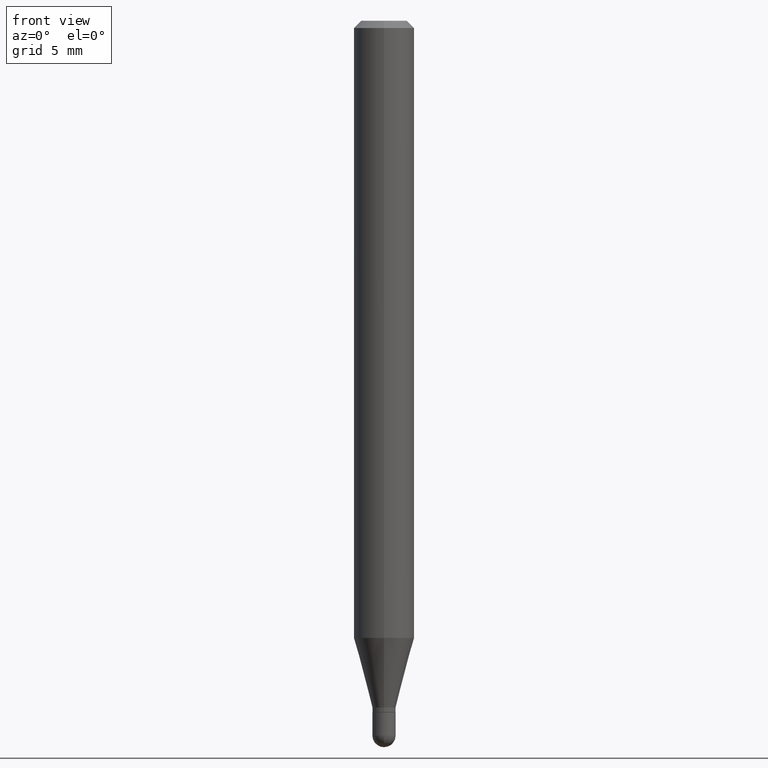
[diagram: clean part render]
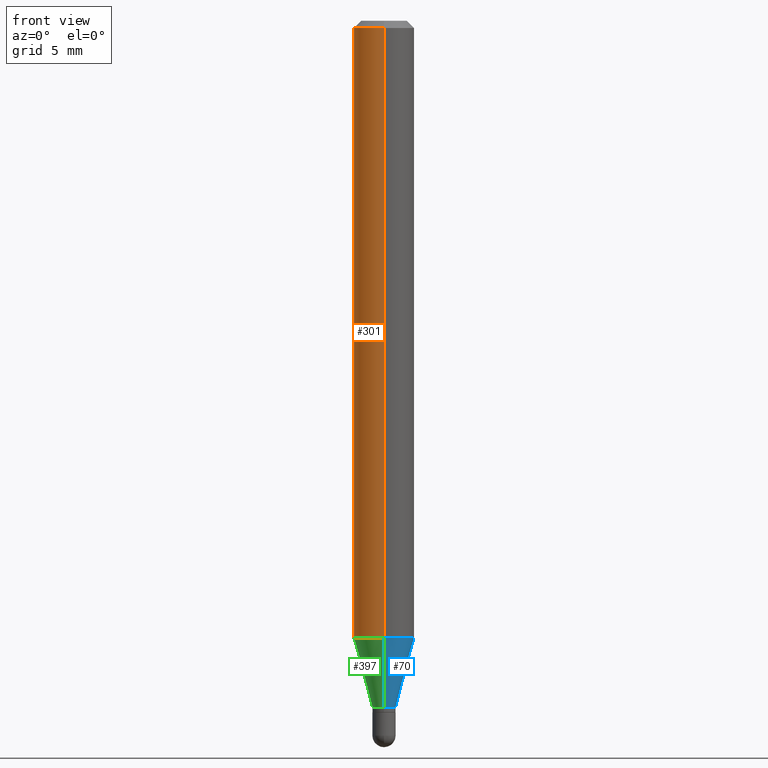
[diagram: same view with three faces highlighted in distinct colors, each labeled with its STEP entity id]
A machine part, front view with three faces highlighted in distinct colors.
Their STEP definitions:

[orange] entity #301 — the highlighted cylindrical surface (edge-blend (fillet) strip) has radius 1.5875 mm, axis along (-0, 0, 1).
#10 = DIRECTION ( 'NONE',  ( -6.982962677686265922E-15, -1.000000000000000000, 3.483106191921935554E-15 ) ) ;
#39 = DIRECTION ( 'NONE',  ( -2.445481708128512584E-29, 3.491462862525897925E-15, 1.000000000000000000 ) ) ;
#51 = DIRECTION ( 'NONE',  ( -2.445481708128512584E-29, 3.491462862525897925E-15, 1.000000000000000000 ) ) ;
#87 = EDGE_LOOP ( 'NONE', ( #163, #168, #368, #466 ) ) ;
#89 = LINE ( 'NONE', #401, #144 ) ;
#101 = VERTEX_POINT ( 'NONE', #148 ) ;
#116 = EDGE_CURVE ( 'NONE', #253, #101, #426, .T. ) ;
#144 = VECTOR ( 'NONE', #51, 39.37007874015748143 ) ;
#148 = CARTESIAN_POINT ( 'NONE',  ( -4.364351673553605587E-16, -0.06250000000000446865, -1.274316043908598095 ) ) ;
#154 = DIRECTION ( 'NONE',  ( -2.445481708128512584E-29, 3.491462862525897925E-15, 1.000000000000000000 ) ) ;
#158 = DIRECTION ( 'NONE',  ( -2.445481708128512584E-29, 3.491462862525897925E-15, 1.000000000000000000 ) ) ;
#163 = ORIENTED_EDGE ( 'NONE', *, *, #287, .F. ) ;
#168 = ORIENTED_EDGE ( 'NONE', *, *, #116, .T. ) ;
#173 = VERTEX_POINT ( 'NONE', #229 ) ;
#195 = EDGE_CURVE ( 'NONE', #101, #227, #470, .T. ) ;
#200 = DIRECTION ( 'NONE',  ( -6.982962677686265922E-15, -1.000000000000000000, 4.370956789862821150E-15 ) ) ;
#208 = CYLINDRICAL_SURFACE ( 'NONE', #334, 0.06250000000000000000 ) ;
#214 = FACE_OUTER_BOUND ( 'NONE', #87, .T. ) ;
#227 = VERTEX_POINT ( 'NONE', #472 ) ;
#229 = CARTESIAN_POINT ( 'NONE',  ( 4.440892098500939734E-16, 0.06249999999999995143, -0.01500000000000022669 ) ) ;
#237 = CARTESIAN_POINT ( 'NONE',  ( 3.116316575753167812E-29, -4.449227142427792447E-15, -1.274316043908598539 ) ) ;
#239 = CARTESIAN_POINT ( 'NONE',  ( 0.000000000000000000, 0.000000000000000000, 0.000000000000000000 ) ) ;
#253 = VERTEX_POINT ( 'NONE', #273 ) ;
#273 = CARTESIAN_POINT ( 'NONE',  ( 4.440892098500935790E-16, 0.06249999999999552441, -1.274316043908598761 ) ) ;
#283 = AXIS2_PLACEMENT_3D ( 'NONE', #237, #154, #200 ) ;
#287 = EDGE_CURVE ( 'NONE', #253, #173, #89, .T. ) ;
#301 = ADVANCED_FACE ( 'NONE', ( #214 ), #208, .T. ) ;
#302 = VECTOR ( 'NONE', #39, 39.37007874015748143 ) ;
#305 = CIRCLE ( 'NONE', #396, 0.06250000000000000000 ) ;
#311 = EDGE_CURVE ( 'NONE', #173, #227, #305, .T. ) ;
#315 = CARTESIAN_POINT ( 'NONE',  ( -4.364351673553916201E-16, -0.06250000000000000000, 2.182164289078686203E-16 ) ) ;
#334 = AXIS2_PLACEMENT_3D ( 'NONE', #239, #437, #359 ) ;
#359 = DIRECTION ( 'NONE',  ( -6.982962677686265922E-15, -1.000000000000000000, 3.491462862525897925E-15 ) ) ;
#366 = CARTESIAN_POINT ( 'NONE',  ( 3.668222562192771468E-31, -5.237194293788850043E-17, -0.01500000000000000812 ) ) ;
#368 = ORIENTED_EDGE ( 'NONE', *, *, #195, .T. ) ;
#396 = AXIS2_PLACEMENT_3D ( 'NONE', #366, #158, #10 ) ;
#401 = CARTESIAN_POINT ( 'NONE',  ( 4.440892098500625669E-16, 0.06250000000000000000, -2.182164289078686203E-16 ) ) ;
#426 = CIRCLE ( 'NONE', #283, 0.06250000000000000000 ) ;
#437 = DIRECTION ( 'NONE',  ( -2.445481708128512584E-29, 3.491462862525897925E-15, 1.000000000000000000 ) ) ;
#466 = ORIENTED_EDGE ( 'NONE', *, *, #311, .F. ) ;
#470 = LINE ( 'NONE', #315, #302 ) ;
#472 = CARTESIAN_POINT ( 'NONE',  ( -4.364351673553912750E-16, -0.06250000000000005551, -0.01499999999999979128 ) ) ;

[blue] entity #70 — the highlighted conical surface has half-angle 15 deg.
#15 = LINE ( 'NONE', #206, #374 ) ;
#29 = DIRECTION ( 'NONE',  ( -2.445481708128512584E-29, 3.491462862525897925E-15, 1.000000000000000000 ) ) ;
#36 = ORIENTED_EDGE ( 'NONE', *, *, #339, .F. ) ;
#70 = ADVANCED_FACE ( 'NONE', ( #81 ), #166, .T. ) ;
#73 = CARTESIAN_POINT ( 'NONE',  ( -1.675911042644352041E-16, -0.02400000000000487854, -1.417999999999999927 ) ) ;
#78 = DIRECTION ( 'NONE',  ( -6.982962677686265133E-15, -1.000000000000000000, 0.000000000000000000 ) ) ;
#81 = FACE_OUTER_BOUND ( 'NONE', #376, .T. ) ;
#83 = CARTESIAN_POINT ( 'NONE',  ( 3.467693062126230447E-29, -4.950894339061723592E-15, -1.417999999999999927 ) ) ;
#86 = CARTESIAN_POINT ( 'NONE',  ( 3.073097332162760452E-16, 0.02399999999999497674, -1.417999999999999927 ) ) ;
#90 = DIRECTION ( 'NONE',  ( -2.445481708128512584E-29, 3.491462862525897925E-15, 1.000000000000000000 ) ) ;
#96 = AXIS2_PLACEMENT_3D ( 'NONE', #327, #90, #479 ) ;
#101 = VERTEX_POINT ( 'NONE', #148 ) ;
#103 = AXIS2_PLACEMENT_3D ( 'NONE', #83, #427, #78 ) ;
#148 = CARTESIAN_POINT ( 'NONE',  ( -4.364351673553605587E-16, -0.06250000000000446865, -1.274316043908598095 ) ) ;
#149 = VECTOR ( 'NONE', #321, 39.37007874015748143 ) ;
#150 = CIRCLE ( 'NONE', #96, 0.02399999999999992764 ) ;
#161 = DIRECTION ( 'NONE',  ( 1.839019923739599921E-15, 0.2588190451025249028, 0.9659258262890670910 ) ) ;
#166 = CONICAL_SURFACE ( 'NONE', #103, 0.02399999999999992764, 0.2617993877991502405 ) ;
#180 = CIRCLE ( 'NONE', #390, 0.06250000000000000000 ) ;
#203 = CARTESIAN_POINT ( 'NONE',  ( 3.116316575753167812E-29, -4.449227142427792447E-15, -1.274316043908598539 ) ) ;
#206 = CARTESIAN_POINT ( 'NONE',  ( 1.705302565824581664E-16, 0.02399999999999497674, -1.417999999999999927 ) ) ;
#253 = VERTEX_POINT ( 'NONE', #273 ) ;
#263 = ORIENTED_EDGE ( 'NONE', *, *, #277, .F. ) ;
#266 = EDGE_CURVE ( 'NONE', #402, #253, #15, .T. ) ;
#273 = CARTESIAN_POINT ( 'NONE',  ( 4.440892098500935790E-16, 0.06249999999999552441, -1.274316043908598761 ) ) ;
#277 = EDGE_CURVE ( 'NONE', #340, #101, #410, .T. ) ;
#320 = ORIENTED_EDGE ( 'NONE', *, *, #429, .T. ) ;
#321 = DIRECTION ( 'NONE',  ( -1.807323732225329745E-15, -0.2588190451025181305, 0.9659258262890689783 ) ) ;
#327 = CARTESIAN_POINT ( 'NONE',  ( 3.467693062126230447E-29, -4.950894339061723592E-15, -1.417999999999999927 ) ) ;
#339 = EDGE_CURVE ( 'NONE', #101, #253, #180, .T. ) ;
#340 = VERTEX_POINT ( 'NONE', #73 ) ;
#371 = DIRECTION ( 'NONE',  ( -6.982962677686265922E-15, -1.000000000000000000, 4.370956789862821150E-15 ) ) ;
#374 = VECTOR ( 'NONE', #161, 39.37007874015748143 ) ;
#376 = EDGE_LOOP ( 'NONE', ( #320, #412, #36, #263 ) ) ;
#390 = AXIS2_PLACEMENT_3D ( 'NONE', #203, #29, #371 ) ;
#402 = VERTEX_POINT ( 'NONE', #86 ) ;
#410 = LINE ( 'NONE', #445, #149 ) ;
#412 = ORIENTED_EDGE ( 'NONE', *, *, #266, .T. ) ;
#427 = DIRECTION ( 'NONE',  ( -2.445481708128512584E-29, 3.491462862525897925E-15, 1.000000000000000000 ) ) ;
#429 = EDGE_CURVE ( 'NONE', #340, #402, #150, .T. ) ;
#445 = CARTESIAN_POINT ( 'NONE',  ( -1.675911042644352041E-16, -0.02400000000000487854, -1.417999999999999927 ) ) ;
#479 = DIRECTION ( 'NONE',  ( -6.982962677686265133E-15, -1.000000000000000000, 0.000000000000000000 ) ) ;

[green] entity #397 — the highlighted conical surface has half-angle 15 deg.
#15 = LINE ( 'NONE', #206, #374 ) ;
#25 = AXIS2_PLACEMENT_3D ( 'NONE', #360, #240, #355 ) ;
#73 = CARTESIAN_POINT ( 'NONE',  ( -1.675911042644352041E-16, -0.02400000000000487854, -1.417999999999999927 ) ) ;
#86 = CARTESIAN_POINT ( 'NONE',  ( 3.073097332162760452E-16, 0.02399999999999497674, -1.417999999999999927 ) ) ;
#88 = CIRCLE ( 'NONE', #362, 0.02399999999999992764 ) ;
#92 = EDGE_LOOP ( 'NONE', ( #134, #147, #187, #344 ) ) ;
#101 = VERTEX_POINT ( 'NONE', #148 ) ;
#110 = DIRECTION ( 'NONE',  ( -6.982962677686265133E-15, -1.000000000000000000, 0.000000000000000000 ) ) ;
#116 = EDGE_CURVE ( 'NONE', #253, #101, #426, .T. ) ;
#134 = ORIENTED_EDGE ( 'NONE', *, *, #266, .F. ) ;
#147 = ORIENTED_EDGE ( 'NONE', *, *, #341, .T. ) ;
#148 = CARTESIAN_POINT ( 'NONE',  ( -4.364351673553605587E-16, -0.06250000000000446865, -1.274316043908598095 ) ) ;
#149 = VECTOR ( 'NONE', #321, 39.37007874015748143 ) ;
#154 = DIRECTION ( 'NONE',  ( -2.445481708128512584E-29, 3.491462862525897925E-15, 1.000000000000000000 ) ) ;
#161 = DIRECTION ( 'NONE',  ( 1.839019923739599921E-15, 0.2588190451025249028, 0.9659258262890670910 ) ) ;
#187 = ORIENTED_EDGE ( 'NONE', *, *, #277, .T. ) ;
#200 = DIRECTION ( 'NONE',  ( -6.982962677686265922E-15, -1.000000000000000000, 4.370956789862821150E-15 ) ) ;
#206 = CARTESIAN_POINT ( 'NONE',  ( 1.705302565824581664E-16, 0.02399999999999497674, -1.417999999999999927 ) ) ;
#211 = FACE_OUTER_BOUND ( 'NONE', #92, .T. ) ;
#237 = CARTESIAN_POINT ( 'NONE',  ( 3.116316575753167812E-29, -4.449227142427792447E-15, -1.274316043908598539 ) ) ;
#240 = DIRECTION ( 'NONE',  ( -2.445481708128512584E-29, 3.491462862525897925E-15, 1.000000000000000000 ) ) ;
#243 = CONICAL_SURFACE ( 'NONE', #25, 0.02399999999999992764, 0.2617993877991502405 ) ;
#253 = VERTEX_POINT ( 'NONE', #273 ) ;
#266 = EDGE_CURVE ( 'NONE', #402, #253, #15, .T. ) ;
#273 = CARTESIAN_POINT ( 'NONE',  ( 4.440892098500935790E-16, 0.06249999999999552441, -1.274316043908598761 ) ) ;
#277 = EDGE_CURVE ( 'NONE', #340, #101, #410, .T. ) ;
#283 = AXIS2_PLACEMENT_3D ( 'NONE', #237, #154, #200 ) ;
#321 = DIRECTION ( 'NONE',  ( -1.807323732225329745E-15, -0.2588190451025181305, 0.9659258262890689783 ) ) ;
#340 = VERTEX_POINT ( 'NONE', #73 ) ;
#341 = EDGE_CURVE ( 'NONE', #402, #340, #88, .T. ) ;
#344 = ORIENTED_EDGE ( 'NONE', *, *, #116, .F. ) ;
#355 = DIRECTION ( 'NONE',  ( -6.982962677686265133E-15, -1.000000000000000000, 0.000000000000000000 ) ) ;
#360 = CARTESIAN_POINT ( 'NONE',  ( 3.467693062126230447E-29, -4.950894339061723592E-15, -1.417999999999999927 ) ) ;
#362 = AXIS2_PLACEMENT_3D ( 'NONE', #505, #467, #110 ) ;
#374 = VECTOR ( 'NONE', #161, 39.37007874015748143 ) ;
#397 = ADVANCED_FACE ( 'NONE', ( #211 ), #243, .T. ) ;
#402 = VERTEX_POINT ( 'NONE', #86 ) ;
#410 = LINE ( 'NONE', #445, #149 ) ;
#426 = CIRCLE ( 'NONE', #283, 0.06250000000000000000 ) ;
#445 = CARTESIAN_POINT ( 'NONE',  ( -1.675911042644352041E-16, -0.02400000000000487854, -1.417999999999999927 ) ) ;
#467 = DIRECTION ( 'NONE',  ( -2.445481708128512584E-29, 3.491462862525897925E-15, 1.000000000000000000 ) ) ;
#505 = CARTESIAN_POINT ( 'NONE',  ( 3.467693062126230447E-29, -4.950894339061723592E-15, -1.417999999999999927 ) ) ;